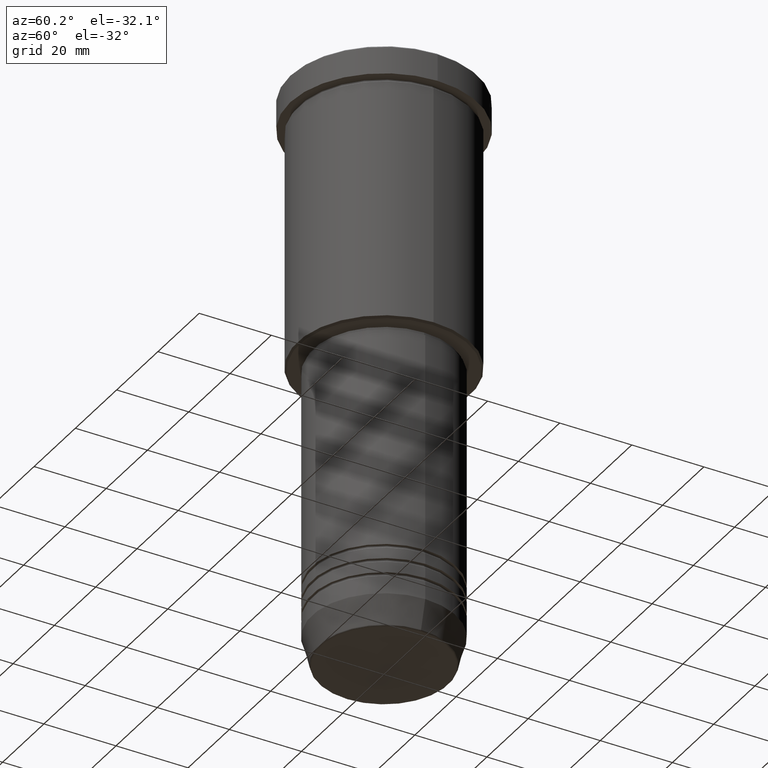
[diagram: clean part render]
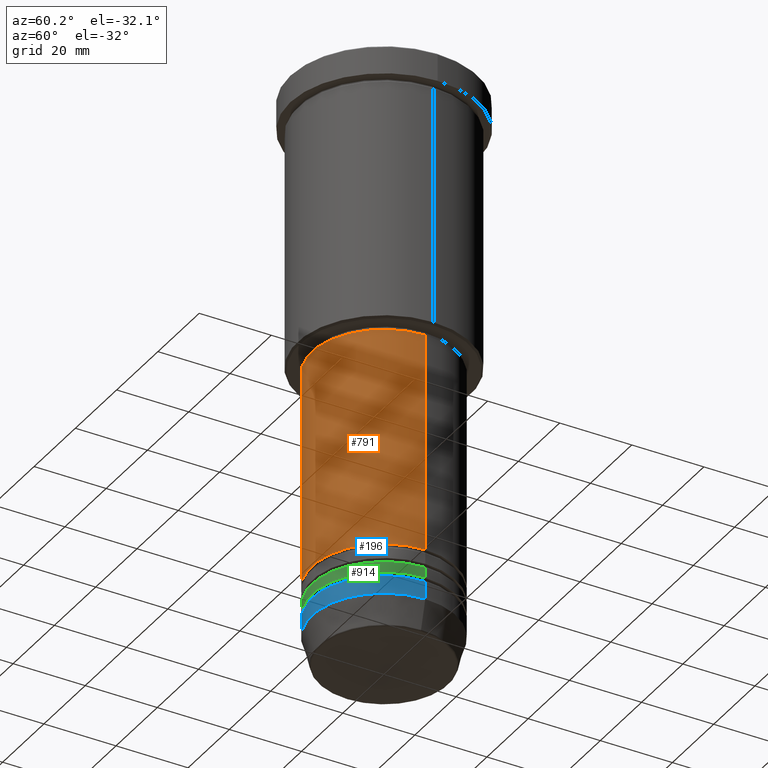
[diagram: same view with three faces highlighted in distinct colors, each labeled with its STEP entity id]
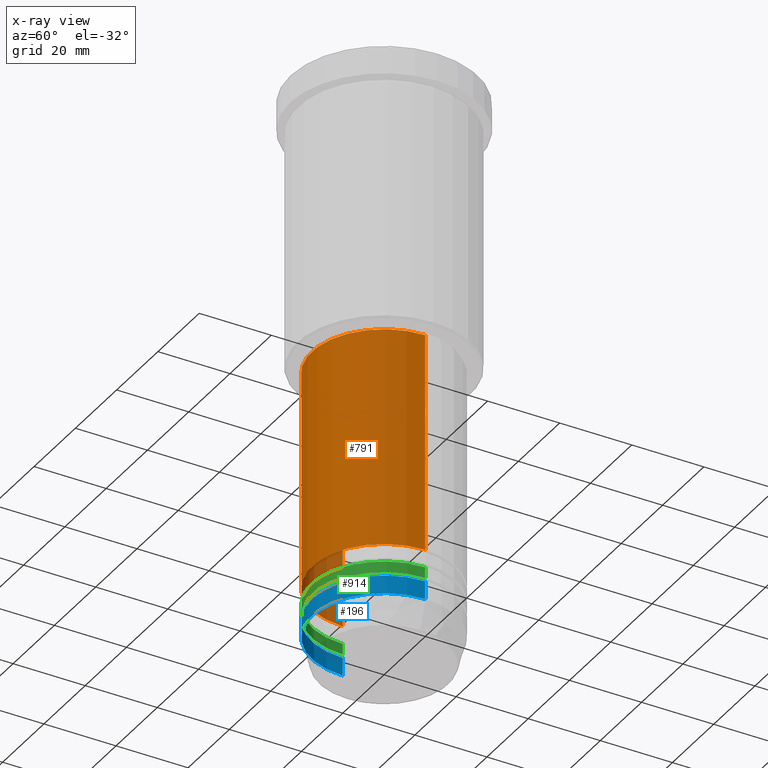
[diagram: x-ray of the same camera — body ghosted, the three highlighted faces saturated]
A machine part, auxiliary view with three faces highlighted in distinct colors.
The next image is the same camera in x-ray (body ghosted, the three faces saturated) — at least one of them is partly hidden behind the body in this view.
Their STEP definitions:

[orange] entity #791 — the highlighted cylindrical surface (partial cylindrical patch) has radius 20 mm, axis along (-0, -0, 1).
#6 = DIRECTION ( 'NONE',  ( 1.000000000000000000, 0.000000000000000000, 0.000000000000000000 ) ) ;
#94 = AXIS2_PLACEMENT_3D ( 'NONE', #513, #773, #664 ) ;
#95 = CARTESIAN_POINT ( 'NONE',  ( 0.000000000000000000, 0.000000000000000000, 0.000000000000000000 ) ) ;
#215 = VERTEX_POINT ( 'NONE', #474 ) ;
#240 = EDGE_CURVE ( 'NONE', #215, #789, #633, .T. ) ;
#304 = EDGE_CURVE ( 'NONE', #320, #400, #831, .T. ) ;
#306 = CARTESIAN_POINT ( 'NONE',  ( 20.00000000000000355, 0.000000000000000000, -77.00000000000004263 ) ) ;
#313 = ORIENTED_EDGE ( 'NONE', *, *, #304, .T. ) ;
#320 = VERTEX_POINT ( 'NONE', #657 ) ;
#330 = CARTESIAN_POINT ( 'NONE',  ( 0.000000000000000000, 0.000000000000000000, -77.00000000000004263 ) ) ;
#362 = LINE ( 'NONE', #640, #580 ) ;
#376 = CARTESIAN_POINT ( 'NONE',  ( -20.00000000000000355, 2.449293598294706907E-15, 0.000000000000000000 ) ) ;
#378 = DIRECTION ( 'NONE',  ( -0.000000000000000000, -0.000000000000000000, 1.000000000000000000 ) ) ;
#392 = DIRECTION ( 'NONE',  ( -0.000000000000000000, -0.000000000000000000, 1.000000000000000000 ) ) ;
#400 = VERTEX_POINT ( 'NONE', #700 ) ;
#474 = CARTESIAN_POINT ( 'NONE',  ( -20.00000000000000355, 2.449293598294706907E-15, -77.00000000000004263 ) ) ;
#483 = VECTOR ( 'NONE', #392, 1000.000000000000000 ) ;
#512 = ORIENTED_EDGE ( 'NONE', *, *, #624, .T. ) ;
#513 = CARTESIAN_POINT ( 'NONE',  ( 0.000000000000000000, 0.000000000000000000, -137.9999999999999716 ) ) ;
#531 = ORIENTED_EDGE ( 'NONE', *, *, #862, .F. ) ;
#537 = AXIS2_PLACEMENT_3D ( 'NONE', #330, #959, #1119 ) ;
#568 = FACE_OUTER_BOUND ( 'NONE', #588, .T. ) ;
#580 = VECTOR ( 'NONE', #378, 1000.000000000000000 ) ;
#586 = ORIENTED_EDGE ( 'NONE', *, *, #240, .F. ) ;
#588 = EDGE_LOOP ( 'NONE', ( #531, #313, #512, #586 ) ) ;
#624 = EDGE_CURVE ( 'NONE', #400, #789, #362, .T. ) ;
#633 = CIRCLE ( 'NONE', #537, 20.00000000000000355 ) ;
#640 = CARTESIAN_POINT ( 'NONE',  ( 20.00000000000000355, 0.000000000000000000, 0.000000000000000000 ) ) ;
#657 = CARTESIAN_POINT ( 'NONE',  ( -20.00000000000000355, 2.449293598294706907E-15, -137.9999999999999716 ) ) ;
#664 = DIRECTION ( 'NONE',  ( 1.000000000000000000, 0.000000000000000000, 0.000000000000000000 ) ) ;
#700 = CARTESIAN_POINT ( 'NONE',  ( 20.00000000000000355, 0.000000000000000000, -137.9999999999999716 ) ) ;
#712 = AXIS2_PLACEMENT_3D ( 'NONE', #95, #749, #6 ) ;
#749 = DIRECTION ( 'NONE',  ( -0.000000000000000000, -0.000000000000000000, 1.000000000000000000 ) ) ;
#773 = DIRECTION ( 'NONE',  ( -0.000000000000000000, -0.000000000000000000, 1.000000000000000000 ) ) ;
#789 = VERTEX_POINT ( 'NONE', #306 ) ;
#791 = ADVANCED_FACE ( 'NONE', ( #568 ), #1099, .T. ) ;
#831 = CIRCLE ( 'NONE', #94, 20.00000000000000355 ) ;
#862 = EDGE_CURVE ( 'NONE', #320, #215, #1104, .T. ) ;
#959 = DIRECTION ( 'NONE',  ( -0.000000000000000000, -0.000000000000000000, 1.000000000000000000 ) ) ;
#1099 = CYLINDRICAL_SURFACE ( 'NONE', #712, 20.00000000000000355 ) ;
#1104 = LINE ( 'NONE', #376, #483 ) ;
#1119 = DIRECTION ( 'NONE',  ( 1.000000000000000000, 0.000000000000000000, 0.000000000000000000 ) ) ;

[blue] entity #196 — the highlighted cylindrical surface (partial cylindrical patch) has radius 20 mm, axis along (-0, -0, 1).
#15 = CARTESIAN_POINT ( 'NONE',  ( 20.00000000000000355, 0.000000000000000000, 0.000000000000000000 ) ) ;
#110 = VERTEX_POINT ( 'NONE', #547 ) ;
#143 = CARTESIAN_POINT ( 'NONE',  ( -20.00000000000000355, 2.449293598294706907E-15, 0.000000000000000000 ) ) ;
#155 = VECTOR ( 'NONE', #696, 1000.000000000000000 ) ;
#196 = ADVANCED_FACE ( 'NONE', ( #783 ), #321, .T. ) ;
#200 = CIRCLE ( 'NONE', #870, 20.00000000000000000 ) ;
#213 = CARTESIAN_POINT ( 'NONE',  ( 0.000000000000000000, 0.000000000000000000, -147.0000000000000000 ) ) ;
#224 = EDGE_LOOP ( 'NONE', ( #1181, #1074, #682, #724 ) ) ;
#281 = EDGE_CURVE ( 'NONE', #623, #110, #598, .T. ) ;
#302 = DIRECTION ( 'NONE',  ( 1.000000000000000000, 0.000000000000000000, 0.000000000000000000 ) ) ;
#318 = CARTESIAN_POINT ( 'NONE',  ( 0.000000000000000000, 0.000000000000000000, 0.000000000000000000 ) ) ;
#321 = CYLINDRICAL_SURFACE ( 'NONE', #364, 20.00000000000000355 ) ;
#336 = CARTESIAN_POINT ( 'NONE',  ( 0.000000000000000000, 0.000000000000000000, -152.0000000000000000 ) ) ;
#361 = EDGE_CURVE ( 'NONE', #623, #444, #1130, .T. ) ;
#364 = AXIS2_PLACEMENT_3D ( 'NONE', #318, #509, #590 ) ;
#387 = DIRECTION ( 'NONE',  ( -0.000000000000000000, -0.000000000000000000, 1.000000000000000000 ) ) ;
#444 = VERTEX_POINT ( 'NONE', #889 ) ;
#456 = DIRECTION ( 'NONE',  ( -0.000000000000000000, -0.000000000000000000, 1.000000000000000000 ) ) ;
#466 = CARTESIAN_POINT ( 'NONE',  ( -20.00000000000000355, 2.449293598294706907E-15, -152.0000000000000000 ) ) ;
#509 = DIRECTION ( 'NONE',  ( -0.000000000000000000, -0.000000000000000000, 1.000000000000000000 ) ) ;
#547 = CARTESIAN_POINT ( 'NONE',  ( -20.00000000000000000, 2.449293598294706513E-15, -147.0000000000000000 ) ) ;
#590 = DIRECTION ( 'NONE',  ( 1.000000000000000000, 0.000000000000000000, 0.000000000000000000 ) ) ;
#597 = EDGE_CURVE ( 'NONE', #444, #997, #851, .T. ) ;
#598 = LINE ( 'NONE', #143, #155 ) ;
#623 = VERTEX_POINT ( 'NONE', #466 ) ;
#682 = ORIENTED_EDGE ( 'NONE', *, *, #597, .T. ) ;
#696 = DIRECTION ( 'NONE',  ( -0.000000000000000000, -0.000000000000000000, 1.000000000000000000 ) ) ;
#724 = ORIENTED_EDGE ( 'NONE', *, *, #856, .F. ) ;
#732 = AXIS2_PLACEMENT_3D ( 'NONE', #336, #999, #1154 ) ;
#783 = FACE_OUTER_BOUND ( 'NONE', #224, .T. ) ;
#790 = VECTOR ( 'NONE', #456, 1000.000000000000000 ) ;
#814 = CARTESIAN_POINT ( 'NONE',  ( 20.00000000000000000, 0.000000000000000000, -147.0000000000000000 ) ) ;
#851 = LINE ( 'NONE', #15, #790 ) ;
#856 = EDGE_CURVE ( 'NONE', #110, #997, #200, .T. ) ;
#870 = AXIS2_PLACEMENT_3D ( 'NONE', #213, #387, #302 ) ;
#889 = CARTESIAN_POINT ( 'NONE',  ( 20.00000000000000355, 0.000000000000000000, -152.0000000000000000 ) ) ;
#997 = VERTEX_POINT ( 'NONE', #814 ) ;
#999 = DIRECTION ( 'NONE',  ( -0.000000000000000000, -0.000000000000000000, 1.000000000000000000 ) ) ;
#1074 = ORIENTED_EDGE ( 'NONE', *, *, #361, .T. ) ;
#1130 = CIRCLE ( 'NONE', #732, 20.00000000000000355 ) ;
#1154 = DIRECTION ( 'NONE',  ( 1.000000000000000000, 0.000000000000000000, 0.000000000000000000 ) ) ;
#1181 = ORIENTED_EDGE ( 'NONE', *, *, #281, .F. ) ;

[green] entity #914 — the highlighted cylindrical surface (partial cylindrical patch) has radius 20 mm, axis along (-0, -0, 1).
#24 = LINE ( 'NONE', #208, #499 ) ;
#45 = EDGE_CURVE ( 'NONE', #257, #422, #943, .T. ) ;
#66 = CARTESIAN_POINT ( 'NONE',  ( 20.00000000000000000, 0.000000000000000000, -143.0000000000000000 ) ) ;
#88 = CARTESIAN_POINT ( 'NONE',  ( 0.000000000000000000, 0.000000000000000000, -145.9999999999999716 ) ) ;
#114 = VECTOR ( 'NONE', #1183, 1000.000000000000000 ) ;
#133 = ORIENTED_EDGE ( 'NONE', *, *, #45, .F. ) ;
#141 = DIRECTION ( 'NONE',  ( -0.000000000000000000, -0.000000000000000000, 1.000000000000000000 ) ) ;
#198 = DIRECTION ( 'NONE',  ( -0.000000000000000000, -0.000000000000000000, 1.000000000000000000 ) ) ;
#208 = CARTESIAN_POINT ( 'NONE',  ( -20.00000000000000355, 2.449293598294706907E-15, 0.000000000000000000 ) ) ;
#223 = EDGE_CURVE ( 'NONE', #352, #257, #24, .T. ) ;
#257 = VERTEX_POINT ( 'NONE', #386 ) ;
#275 = CIRCLE ( 'NONE', #315, 20.00000000000000355 ) ;
#300 = CARTESIAN_POINT ( 'NONE',  ( 20.00000000000000355, 0.000000000000000000, 0.000000000000000000 ) ) ;
#315 = AXIS2_PLACEMENT_3D ( 'NONE', #88, #611, #800 ) ;
#350 = CARTESIAN_POINT ( 'NONE',  ( 0.000000000000000000, 0.000000000000000000, -143.0000000000000000 ) ) ;
#352 = VERTEX_POINT ( 'NONE', #634 ) ;
#386 = CARTESIAN_POINT ( 'NONE',  ( -20.00000000000000000, 2.449293598294706513E-15, -143.0000000000000000 ) ) ;
#410 = ORIENTED_EDGE ( 'NONE', *, *, #1042, .T. ) ;
#422 = VERTEX_POINT ( 'NONE', #66 ) ;
#435 = VERTEX_POINT ( 'NONE', #718 ) ;
#499 = VECTOR ( 'NONE', #1109, 1000.000000000000000 ) ;
#561 = DIRECTION ( 'NONE',  ( 1.000000000000000000, 0.000000000000000000, 0.000000000000000000 ) ) ;
#583 = EDGE_LOOP ( 'NONE', ( #1126, #1058, #410, #133 ) ) ;
#611 = DIRECTION ( 'NONE',  ( -0.000000000000000000, -0.000000000000000000, 1.000000000000000000 ) ) ;
#634 = CARTESIAN_POINT ( 'NONE',  ( -20.00000000000000355, 2.449293598294706907E-15, -145.9999999999999716 ) ) ;
#649 = FACE_OUTER_BOUND ( 'NONE', #583, .T. ) ;
#715 = DIRECTION ( 'NONE',  ( 1.000000000000000000, 0.000000000000000000, 0.000000000000000000 ) ) ;
#718 = CARTESIAN_POINT ( 'NONE',  ( 20.00000000000000355, 0.000000000000000000, -145.9999999999999716 ) ) ;
#747 = EDGE_CURVE ( 'NONE', #352, #435, #275, .T. ) ;
#785 = AXIS2_PLACEMENT_3D ( 'NONE', #1017, #198, #561 ) ;
#800 = DIRECTION ( 'NONE',  ( 1.000000000000000000, 0.000000000000000000, 0.000000000000000000 ) ) ;
#850 = AXIS2_PLACEMENT_3D ( 'NONE', #350, #141, #715 ) ;
#914 = ADVANCED_FACE ( 'NONE', ( #649 ), #933, .T. ) ;
#933 = CYLINDRICAL_SURFACE ( 'NONE', #785, 20.00000000000000355 ) ;
#943 = CIRCLE ( 'NONE', #850, 20.00000000000000000 ) ;
#1014 = LINE ( 'NONE', #300, #114 ) ;
#1017 = CARTESIAN_POINT ( 'NONE',  ( 0.000000000000000000, 0.000000000000000000, 0.000000000000000000 ) ) ;
#1042 = EDGE_CURVE ( 'NONE', #435, #422, #1014, .T. ) ;
#1058 = ORIENTED_EDGE ( 'NONE', *, *, #747, .T. ) ;
#1109 = DIRECTION ( 'NONE',  ( -0.000000000000000000, -0.000000000000000000, 1.000000000000000000 ) ) ;
#1126 = ORIENTED_EDGE ( 'NONE', *, *, #223, .F. ) ;
#1183 = DIRECTION ( 'NONE',  ( -0.000000000000000000, -0.000000000000000000, 1.000000000000000000 ) ) ;